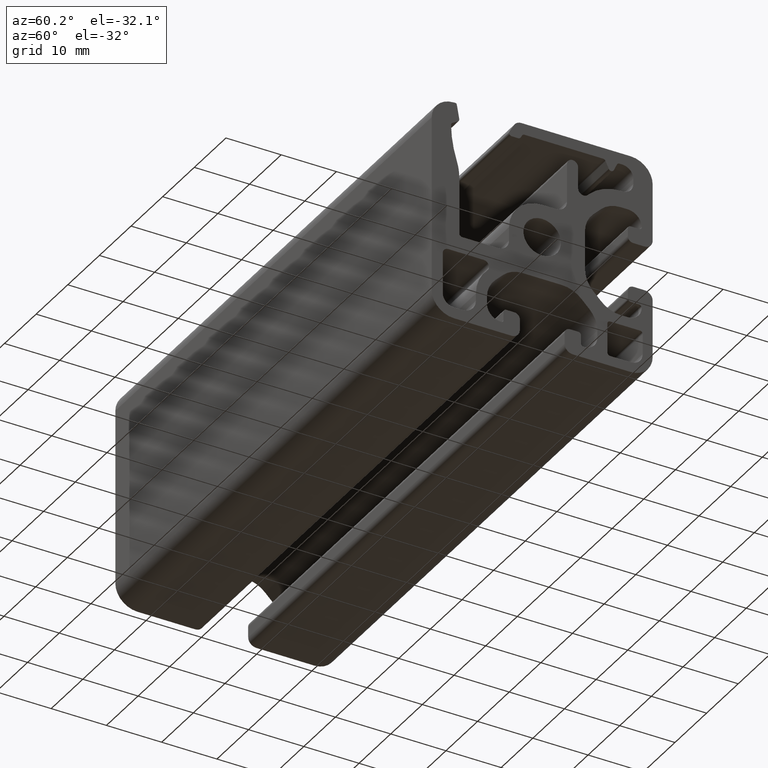
[diagram: clean part render]
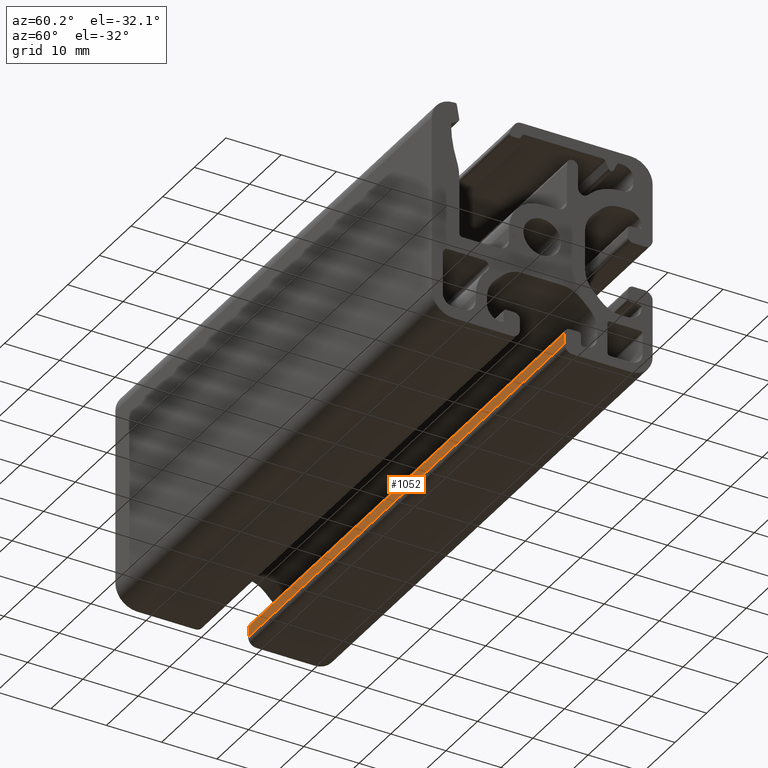
[diagram: same view with one face highlighted and labeled with its STEP entity id]
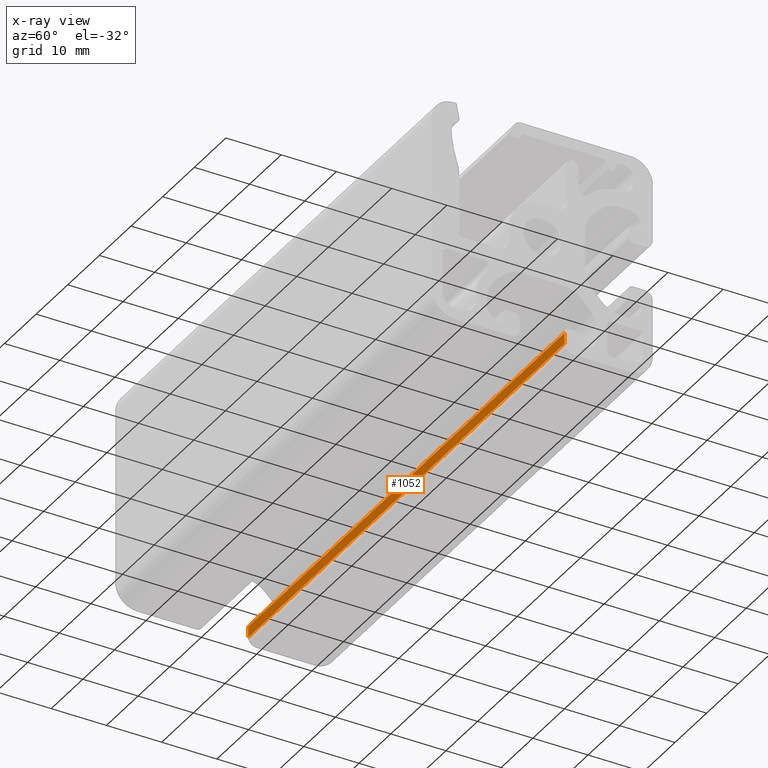
[diagram: x-ray of the same camera — body ghosted, the highlighted face saturated]
A machine part, auxiliary view. The second image highlights one B-rep face of the part: STEP entity #1052.
The next image is the same camera in x-ray: the body ghosted, the highlighted face saturated — about 0% of this face is hidden behind the body in this view.
In plain terms, the highlighted planar face has unit normal (-0, 1, 0).
Its self-contained STEP definition (entity closure, byte-faithful):
#153 = ORIENTED_EDGE ( 'NONE', *, *, #2500, .T. ) ;
#172 = DIRECTION ( 'NONE',  ( 0.0000000000000000000, 0.0000000000000000000, -1.000000000000000000 ) ) ;
#231 = VECTOR ( 'NONE', #172, 1000.000000000000000 ) ;
#317 = VECTOR ( 'NONE', #3190, 1000.000000000000000 ) ;
#636 = EDGE_CURVE ( 'NONE', #1432, #4288, #3222, .T. ) ;
#700 = CARTESIAN_POINT ( 'NONE',  ( -40.81632653061225824, 58.94795847456465765, -16.49999929089149120 ) ) ;
#856 = DIRECTION ( 'NONE',  ( -1.000000000000000000, -0.0000000000000000000, -0.0000000000000000000 ) ) ;
#885 = LINE ( 'NONE', #2155, #3105 ) ;
#1024 = VERTEX_POINT ( 'NONE', #2783 ) ;
#1052 = ADVANCED_FACE ( 'NONE', ( #1409 ), #1489, .F. ) ;
#1067 = CARTESIAN_POINT ( 'NONE',  ( -40.81632653061225824, 58.94795847456465765, -16.49999929089149120 ) ) ;
#1409 = FACE_OUTER_BOUND ( 'NONE', #2481, .T. ) ;
#1432 = VERTEX_POINT ( 'NONE', #700 ) ;
#1489 = PLANE ( 'NONE',  #3533 ) ;
#1813 = DIRECTION ( 'NONE',  ( 0.0000000000000000000, -0.0000000000000000000, 1.000000000000000000 ) ) ;
#2155 = CARTESIAN_POINT ( 'NONE',  ( 59.18367346938774887, 58.94795847456466475, -18.49999929089149475 ) ) ;
#2270 = CARTESIAN_POINT ( 'NONE',  ( -40.81632653061225824, 58.94795847456466475, -18.49999929089149475 ) ) ;
#2315 = LINE ( 'NONE', #2539, #317 ) ;
#2410 = ORIENTED_EDGE ( 'NONE', *, *, #2556, .F. ) ;
#2438 = CARTESIAN_POINT ( 'NONE',  ( 59.18367346938774887, 58.94795847456466475, -18.49999929089149475 ) ) ;
#2481 = EDGE_LOOP ( 'NONE', ( #2667, #2410, #2694, #153 ) ) ;
#2500 = EDGE_CURVE ( 'NONE', #1024, #1432, #2315, .T. ) ;
#2528 = DIRECTION ( 'NONE',  ( 0.0000000000000000000, 0.0000000000000000000, -1.000000000000000000 ) ) ;
#2539 = CARTESIAN_POINT ( 'NONE',  ( 59.18367346938774887, 58.94795847456465765, -16.49999929089149120 ) ) ;
#2556 = EDGE_CURVE ( 'NONE', #2772, #4288, #885, .T. ) ;
#2667 = ORIENTED_EDGE ( 'NONE', *, *, #636, .T. ) ;
#2694 = ORIENTED_EDGE ( 'NONE', *, *, #3458, .F. ) ;
#2772 = VERTEX_POINT ( 'NONE', #2438 ) ;
#2783 = CARTESIAN_POINT ( 'NONE',  ( 59.18367346938774887, 58.94795847456465765, -16.49999929089149120 ) ) ;
#2822 = CARTESIAN_POINT ( 'NONE',  ( 59.18367346938774887, 58.94795847456465765, -16.49999929089149120 ) ) ;
#3105 = VECTOR ( 'NONE', #856, 1000.000000000000000 ) ;
#3190 = DIRECTION ( 'NONE',  ( -1.000000000000000000, -0.0000000000000000000, -0.0000000000000000000 ) ) ;
#3222 = LINE ( 'NONE', #1067, #231 ) ;
#3242 = CARTESIAN_POINT ( 'NONE',  ( 59.18367346938774887, 58.94795847456465765, -16.49999929089149120 ) ) ;
#3305 = VECTOR ( 'NONE', #2528, 1000.000000000000000 ) ;
#3405 = LINE ( 'NONE', #3242, #3305 ) ;
#3458 = EDGE_CURVE ( 'NONE', #1024, #2772, #3405, .T. ) ;
#3459 = DIRECTION ( 'NONE',  ( -0.0000000000000000000, 1.000000000000000000, 0.0000000000000000000 ) ) ;
#3533 = AXIS2_PLACEMENT_3D ( 'NONE', #2822, #3459, #1813 ) ;
#4288 = VERTEX_POINT ( 'NONE', #2270 ) ;